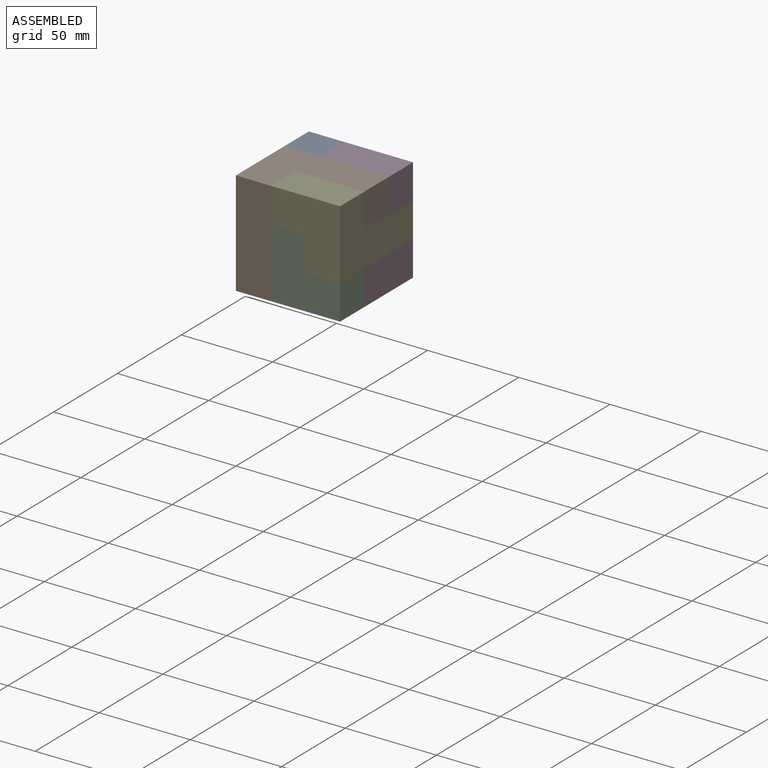
[diagram: assembled view]
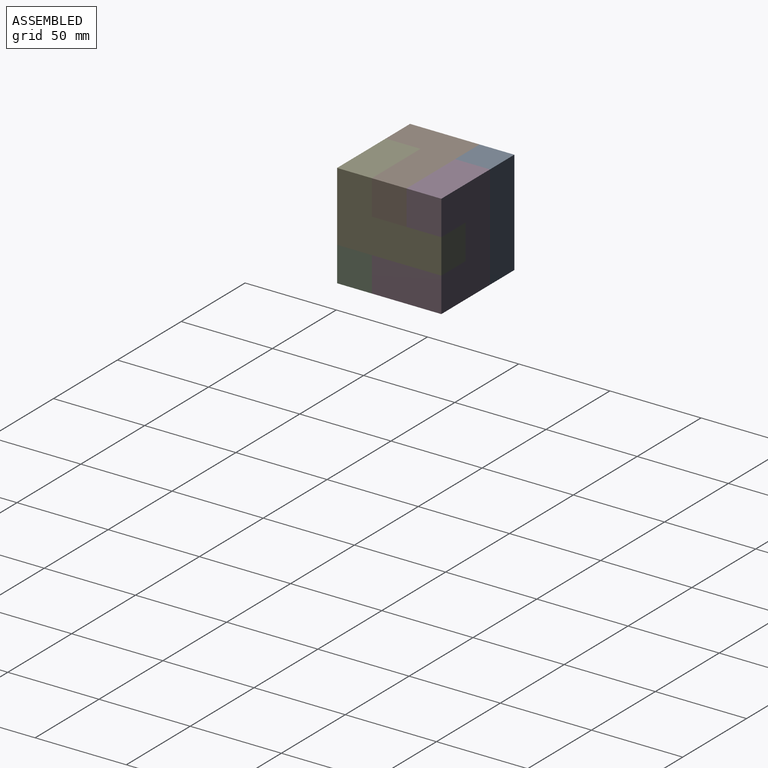
[diagram: assembled view, second angle]
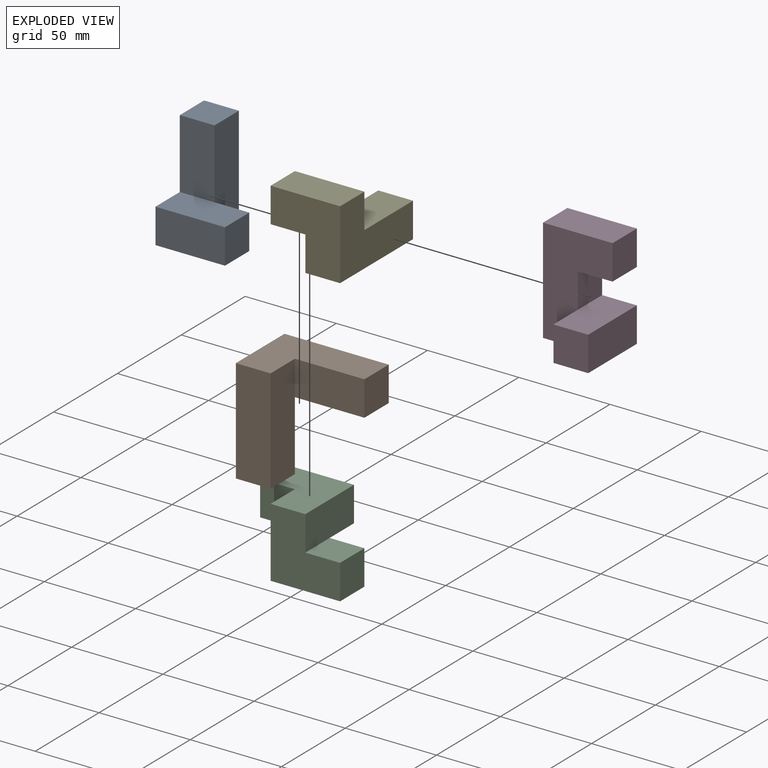
[diagram: exploded view]
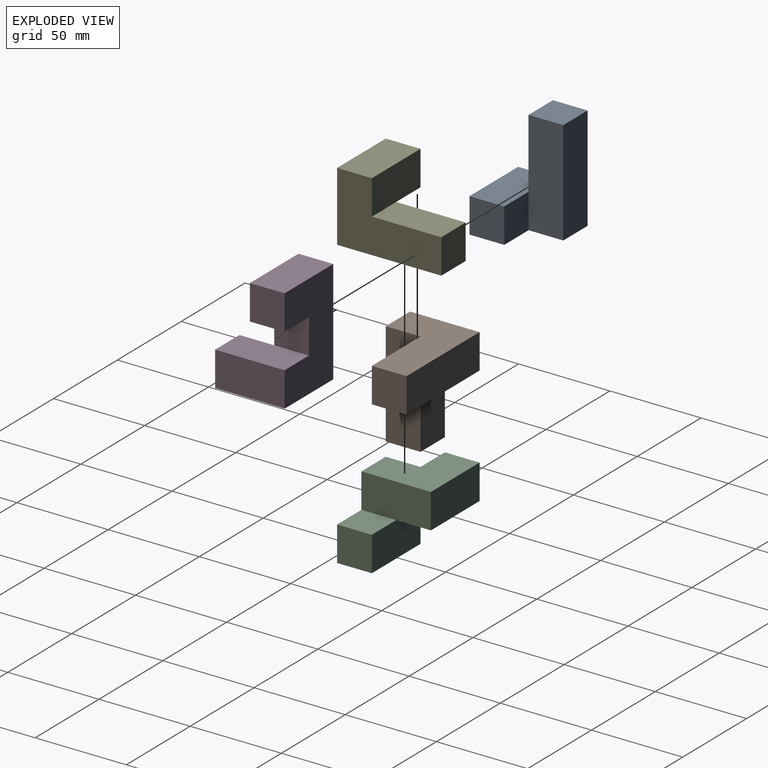
[diagram: exploded view, second angle]
ASSEMBLY  parts=5 mates=4
PART A: 10 faces, bbox 38.1x38.1x57.2 mm
  f0: plane 19.05x19.05mm, normal (0,1,0), area 362.9mm2, adj f1,f2,f3,f6
  f1: plane 19.05x19.05mm, normal (1,0,0), area 362.9mm2, adj f0,f2,f3,f4
  f2: plane 38.1x19.05mm, normal (0,0,1), area 725.8mm2, adj f0,f1,f4,f5,f8
  f3: plane 38.1x38.1mm, normal (0,0,-1), area 1088.7mm2, adj f0,f1,f4,f5,f6,f7
  f4: plane 38.1x19.05mm, normal (0,-1,0), area 725.8mm2, adj f1,f2,f3,f5
  f5: plane 57.15x38.1mm, normal (-1,0,0), area 1451.6mm2, adj f2,f3,f4,f7,f8,f9
  f6: plane 57.15x19.05mm, normal (1,0,0), area 1088.7mm2, adj f0,f3,f7,f8,f9
  f7: plane 57.15x19.05mm, normal (0,1,0), area 1088.7mm2, adj f3,f5,f6,f9
  f8: plane 38.1x19.05mm, normal (0,-1,0), area 725.8mm2, adj f2,f5,f6,f9
  f9: plane 19.05x19.05mm, normal (0,0,1), area 362.9mm2, adj f5,f6,f7,f8
PART B: 10 faces, bbox 57.2x38.1x57.2 mm
  f0: plane 38.1x19.05mm, normal (0,1,0), area 725.8mm2, adj f3,f4,f5,f7
  f1: plane 57.15x38.1mm, normal (-1,0,0), area 1451.6mm2, adj f2,f4,f5,f6,f8,f9
  f2: plane 57.15x19.05mm, normal (0,-1,0), area 1088.7mm2, adj f1,f3,f4,f5
  f3: plane 19.05x19.05mm, normal (1,0,0), area 362.9mm2, adj f0,f2,f4,f5
  f4: plane 57.15x19.05mm, normal (0,0,1), area 1088.7mm2, adj f0,f1,f2,f3,f6
  f5: plane 57.15x38.1mm, normal (0,0,-1), area 1451.6mm2, adj f0,f1,f2,f3,f7,f8
  f6: plane 38.1x19.05mm, normal (0,-1,0), area 725.8mm2, adj f1,f4,f7,f9
  f7: plane 57.15x19.05mm, normal (1,0,0), area 1088.7mm2, adj f0,f5,f6,f8,f9
  f8: plane 57.15x19.05mm, normal (0,1,0), area 1088.7mm2, adj f1,f5,f7,f9
  f9: plane 19.05x19.05mm, normal (0,0,1), area 362.9mm2, adj f1,f6,f7,f8
PART C: 12 faces, bbox 38.1x38.1x57.2 mm
  f0: plane 38.1x19.05mm, normal (0,0,1), area 725.8mm2, adj f1,f3,f4,f7,f10
  f1: plane 38.1x19.05mm, normal (0,-1,0), area 725.8mm2, adj f0,f2,f4,f5,f8
  f2: plane 19.05x19.05mm, normal (-1,0,0), area 362.9mm2, adj f1,f3,f5,f6
  f3: plane 38.1x38.1mm, normal (0,1,0), area 1088.7mm2, adj f0,f2,f4,f5,f6,f7
  f4: plane 38.1x19.05mm, normal (1,0,0), area 725.8mm2, adj f0,f1,f3,f5
  f5: plane 19.05x19.05mm, normal (0,0,-1), area 362.9mm2, adj f1,f2,f3,f4
  f6: plane 38.1x19.05mm, normal (0,0,-1), area 725.8mm2, adj f2,f3,f7,f8,f9
  f7: plane 38.1x38.1mm, normal (-1,0,0), area 1088.7mm2, adj f0,f3,f6,f9,f10,f11
  f8: plane 38.1x19.05mm, normal (1,0,0), area 725.8mm2, adj f1,f6,f9,f10,f11
  f9: plane 38.1x19.05mm, normal (0,-1,0), area 725.8mm2, adj f6,f7,f8,f11
  f10: plane 19.05x19.05mm, normal (0,1,0), area 362.9mm2, adj f0,f7,f8,f11
  f11: plane 19.05x19.05mm, normal (0,0,1), area 362.9mm2, adj f7,f8,f9,f10
PART D: 12 faces, bbox 57.2x38.1x38.1 mm
  f0: plane 19.05x19.05mm, normal (-1,0,0), area 362.9mm2, adj f2,f3,f4,f6
  f1: plane 38.1x19.05mm, normal (1,0,0), area 725.8mm2, adj f2,f3,f4,f5
  f2: plane 57.15x38.1mm, normal (0,0,1), area 1451.6mm2, adj f0,f1,f4,f5,f6,f7,f10
  f3: plane 57.15x38.1mm, normal (0,0,-1), area 1814.5mm2, adj f0,f1,f4,f5,f6,f7,f8,f9
  f4: plane 19.05x19.05mm, normal (0,-1,0), area 362.9mm2, adj f0,f1,f2,f3
  f5: plane 57.15x19.05mm, normal (0,1,0), area 1088.7mm2, adj f1,f2,f3,f7
  f6: plane 19.05x19.05mm, normal (0,-1,0), area 362.9mm2, adj f0,f2,f3,f8
  f7: plane 38.1x38.1mm, normal (-1,0,0), area 1088.7mm2, adj f2,f3,f5,f9,f10,f11
  f8: plane 38.1x19.05mm, normal (1,0,0), area 725.8mm2, adj f3,f6,f9,f10,f11
  f9: plane 38.1x19.05mm, normal (0,-1,0), area 725.8mm2, adj f3,f7,f8,f11
  f10: plane 19.05x19.05mm, normal (0,1,0), area 362.9mm2, adj f2,f7,f8,f11
  f11: plane 19.05x19.05mm, normal (0,0,1), area 362.9mm2, adj f7,f8,f9,f10
PART E: 10 faces, bbox 38.1x38.1x57.2 mm
  f0: plane 57.15x19.05mm, normal (0,-1,0), area 1088.7mm2, adj f1,f3,f4,f5,f8
  f1: plane 38.1x19.05mm, normal (1,0,0), area 725.8mm2, adj f0,f2,f4,f7
  f2: plane 57.15x38.1mm, normal (0,1,0), area 1451.6mm2, adj f1,f3,f4,f5,f6,f7
  f3: plane 57.15x19.05mm, normal (-1,0,0), area 1088.7mm2, adj f0,f2,f4,f5
  f4: plane 19.05x19.05mm, normal (0,0,1), area 362.9mm2, adj f0,f1,f2,f3
  f5: plane 38.1x38.1mm, normal (0,0,-1), area 1088.7mm2, adj f0,f2,f3,f6,f8,f9
  f6: plane 38.1x19.05mm, normal (1,0,0), area 725.8mm2, adj f2,f5,f7,f9
  f7: plane 38.1x19.05mm, normal (0,0,1), area 725.8mm2, adj f1,f2,f6,f8,f9
  f8: plane 19.05x19.05mm, normal (-1,0,0), area 362.9mm2, adj f0,f5,f7,f9
  f9: plane 19.05x19.05mm, normal (0,-1,0), area 362.9mm2, adj f5,f6,f7,f8
PLACE A t=(-5.92,-105.52,9.11)mm
PLACE B rot(axis=(1,0,0),180deg) t=(-12.22,-124.57,56.73)mm
PLACE C rot(axis=(0.71,0,-0.71),180deg) t=(22.66,-125.13,-28.48)mm
PLACE D rot(axis=(0.58,-0.58,0.58),120deg) t=(22.66,-95.99,47.21)mm
PLACE E rot(axis=(-0.58,-0.58,-0.58),120deg) t=(13.56,-143.62,68.34)mm
MATE fastened D.f10 <-> A.f1  axis (-1,0,0) through (3.61,-115.04,9.11)mm
MATE fastened C.f2 <-> E.f3  axis (0,0,1) through (22.66,-143.62,18.63)mm
MATE fastened B.f4 <-> E.f1  axis (0,0,-1) through (22.66,-105.52,37.68)mm
MATE fastened E.f0 <-> D.f6  axis (-1,0,0) through (3.61,-86.47,18.63)mm
